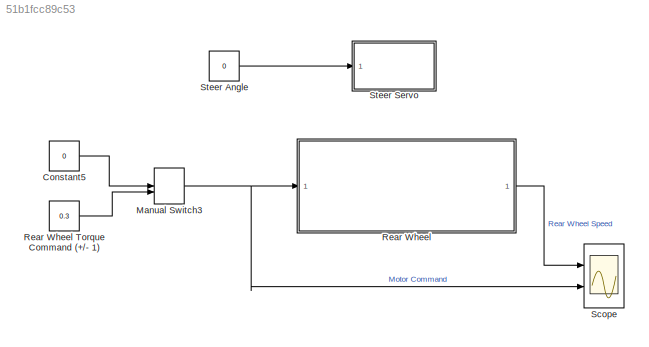
MODEL slx_51b1fcc89c53
KIND model
CONFIG AbsTol = auto
CONFIG EnableMultiTasking = on
CONFIG FixedStep = auto
CONFIG MaxStep = auto
CONFIG MinStep = auto
CONFIG PreLoadFcn = Ts = 0.01;\nTs_wifi = 0.1;
CONFIG RelTol = 1e-3
CONFIG SampleTimeConstraint = Unconstrained
CONFIG SolverName = FixedStepAuto
CONFIG StartTime = 0.0
CONFIG StopTime = inf
BLOCK [Constant] Constant5
  Value = 0
BLOCK [ManualSwitch] Manual Switch3
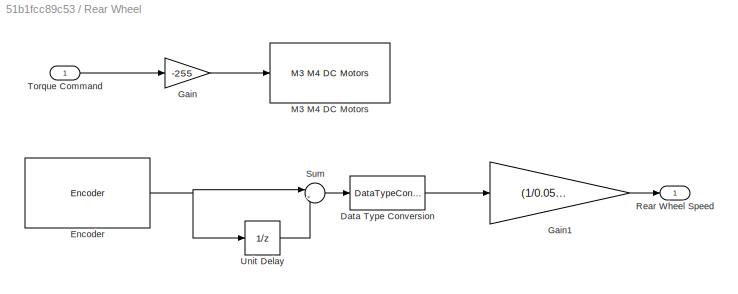
BLOCK [SubSystem] Rear Wheel
  Ports = [1, 1]
  RequestExecContextInheritance = off
BLOCK [Constant] Rear Wheel Torque Command (+//- 1)
  Value = 0.3
BLOCK [DataTypeConversion] Rear Wheel/Data Type Conversion
  OutDataTypeStr = double
  RndMeth = Floor
  SaturateOnIntegerOverflow = off
BLOCK [Reference] Rear Wheel/Encoder  REF=arduinomotorcarrierlib/Encoder
  Ports = [0, 1]
  SourceBlock = arduinomotorcarrierlib/Encoder
  SourceProductBaseCode = ARDUINO
  SourceType = motorcarrier.blocks.mkrmotorcarrier_Encoder
BLOCK [Gain] Rear Wheel/Gain
  Gain = -255
BLOCK [Gain] Rear Wheel/Gain1
  Gain = (1/0.05)*(0.2827/1200)
BLOCK [Reference] Rear Wheel/M3 M4 DC Motors  REF=arduinomotorcarrierlib/M3 M4 DC Motors
  Ports = [1]
  SourceBlock = arduinomotorcarrierlib/M3 M4 DC Motors
  SourceProductBaseCode = ARDUINO
  SourceType = DC Motor
BLOCK [Outport] Rear Wheel/Rear Wheel Speed
BLOCK [Sum] Rear Wheel/Sum
  Inputs = |+-
  Ports = [2, 1]
BLOCK [Inport] Rear Wheel/Torque Command
BLOCK [UnitDelay] Rear Wheel/Unit Delay
  HasFrameUpgradeWarning = on
  SampleTime = -1
BLOCK [Scope] Scope
  Floating = off
  NumInputPorts = 2
  Ports = [2]
  ScopeSpecificationString = Simulink.scopes.TimeScopeBlockCfg('CurrentConfiguration', extmgr.ConfigurationSet(extmgr.Configuration('Core','General UI',true),extmgr.Configuration('Core','Source UI',true),extmgr.Configuration('Sources','WiredSimulink',true),extmgr.Configuration('Visuals','Time Domain',true,'SerializedDisplays',{struct('MinYLimReal','0.53713','MaxYLimReal','0.63136','YLabelReal','','MinYLimMag','0.53713','MaxYL...<+2042ch>
BLOCK [Constant] Steer Angle
  Value = 0
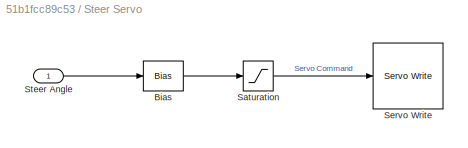
BLOCK [SubSystem] Steer Servo
  Ports = [1]
  RequestExecContextInheritance = off
BLOCK [Bias] Steer Servo/Bias
  Bias = 90
  SaturateOnIntegerOverflow = off
BLOCK [Saturate] Steer Servo/Saturation
  LowerLimit = 60
  UpperLimit = 120
BLOCK [Reference] Steer Servo/Servo Write  REF=arduinomotorcarrierlib/Servo Write
  Ports = [1]
  SourceBlock = arduinomotorcarrierlib/Servo Write
  SourceProductBaseCode = ARDUINO
  SourceType = MKR Servo Motor
BLOCK [Inport] Steer Servo/Steer Angle
LINE Constant5:1 -> Manual Switch3:1
NET Manual Switch3:1 -> Rear Wheel:1, Scope:2
LINE Rear Wheel Torque Command (+//- 1):1 -> Manual Switch3:2
LINE Rear Wheel/Data Type Conversion:1 -> Rear Wheel/Gain1:1
NET Rear Wheel/Encoder:1 -> Rear Wheel/Sum:1, Rear Wheel/Unit Delay:1
LINE Rear Wheel/Gain1:1 -> Rear Wheel/Rear Wheel Speed:1
LINE Rear Wheel/Gain:1 -> Rear Wheel/M3 M4 DC Motors:1
LINE Rear Wheel/Sum:1 -> Rear Wheel/Data Type Conversion:1
LINE Rear Wheel/Torque Command:1 -> Rear Wheel/Gain:1
LINE Rear Wheel/Unit Delay:1 -> Rear Wheel/Sum:2
LINE Rear Wheel:1 -> Scope:1
LINE Steer Angle:1 -> Steer Servo:1
LINE Steer Servo/Bias:1 -> Steer Servo/Saturation:1
LINE Steer Servo/Saturation:1 -> Steer Servo/Servo Write:1
LINE Steer Servo/Steer Angle:1 -> Steer Servo/Bias:1
note: NET lines group one-source signal fan-out (src -> all destinations, sorted); 1:1 wires keep LINE
